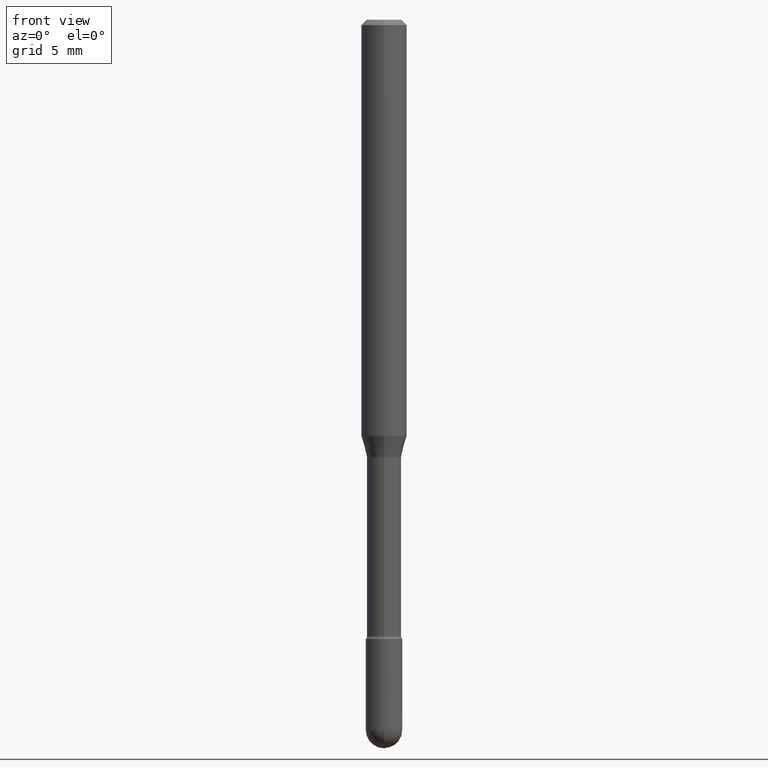
[diagram: clean part render]
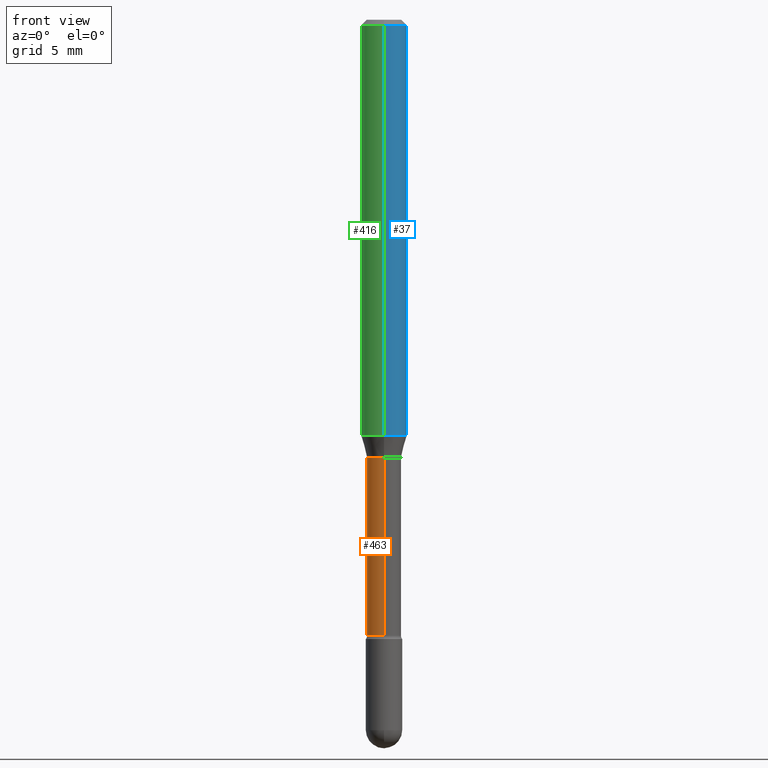
[diagram: same view with three faces highlighted in distinct colors, each labeled with its STEP entity id]
A machine part, front view with three faces highlighted in distinct colors.
Their STEP definitions:

[orange] entity #463 — the highlighted cylindrical surface (edge-blend (fillet) strip) has radius 1.1938 mm, axis along (-0, 0, 1).
#3 = DIRECTION ( 'NONE',  ( -2.445378392071588483E-29, 3.491610816999798488E-15, 1.000000000000000000 ) ) ;
#24 = VERTEX_POINT ( 'NONE', #266 ) ;
#32 = CIRCLE ( 'NONE', #216, 0.04700000000000000705 ) ;
#58 = CYLINDRICAL_SURFACE ( 'NONE', #73, 0.04700000000000004868 ) ;
#64 = DIRECTION ( 'NONE',  ( -6.982962677686265922E-15, -1.000000000000000000, 3.491610816999796910E-15 ) ) ;
#73 = AXIS2_PLACEMENT_3D ( 'NONE', #492, #228, #64 ) ;
#83 = DIRECTION ( 'NONE',  ( -6.982962677686265133E-15, -1.000000000000000000, 5.812442539711187545E-15 ) ) ;
#110 = EDGE_CURVE ( 'NONE', #335, #457, #32, .T. ) ;
#132 = CARTESIAN_POINT ( 'NONE',  ( 3.339550858072473347E-16, 0.04700000000000004868, 3.139676904922554404E-16 ) ) ;
#150 = CARTESIAN_POINT ( 'NONE',  ( 3.446132268436902621E-16, 0.04699999999999417838, -1.691000000000000281 ) ) ;
#152 = ORIENTED_EDGE ( 'NONE', *, *, #271, .F. ) ;
#171 = DIRECTION ( 'NONE',  ( -2.445378392071588483E-29, 3.491610816999798488E-15, 1.000000000000000000 ) ) ;
#174 = VECTOR ( 'NONE', #3, 39.37007874015748143 ) ;
#186 = DIRECTION ( 'NONE',  ( -2.445378392071588483E-29, 3.491610816999798093E-15, 1.000000000000000000 ) ) ;
#205 = CIRCLE ( 'NONE', #230, 0.04700000000000009032 ) ;
#211 = ORIENTED_EDGE ( 'NONE', *, *, #393, .T. ) ;
#216 = AXIS2_PLACEMENT_3D ( 'NONE', #479, #186, #435 ) ;
#228 = DIRECTION ( 'NONE',  ( -2.445378392071588483E-29, 3.491610816999798093E-15, 1.000000000000000000 ) ) ;
#230 = AXIS2_PLACEMENT_3D ( 'NONE', #288, #472, #83 ) ;
#259 = LINE ( 'NONE', #132, #473 ) ;
#266 = CARTESIAN_POINT ( 'NONE',  ( -3.281992458512137296E-16, -0.04700000000000599532, -1.690999999999999837 ) ) ;
#271 = EDGE_CURVE ( 'NONE', #467, #335, #259, .T. ) ;
#273 = EDGE_LOOP ( 'NONE', ( #152, #506, #211, #413 ) ) ;
#278 = CARTESIAN_POINT ( 'NONE',  ( 3.339550858072887499E-16, 0.04699999999999580208, -1.201974787463810701 ) ) ;
#288 = CARTESIAN_POINT ( 'NONE',  ( 4.135134860993056477E-29, -5.904313891546658026E-15, -1.691000000000000059 ) ) ;
#335 = VERTEX_POINT ( 'NONE', #278 ) ;
#393 = EDGE_CURVE ( 'NONE', #24, #457, #433, .T. ) ;
#413 = ORIENTED_EDGE ( 'NONE', *, *, #110, .F. ) ;
#433 = LINE ( 'NONE', #527, #174 ) ;
#435 = DIRECTION ( 'NONE',  ( -6.982962677686265922E-15, -1.000000000000000000, 2.906221269855598900E-15 ) ) ;
#449 = FACE_OUTER_BOUND ( 'NONE', #273, .T. ) ;
#457 = VERTEX_POINT ( 'NONE', #533 ) ;
#463 = ADVANCED_FACE ( 'NONE', ( #449 ), #58, .T. ) ;
#467 = VERTEX_POINT ( 'NONE', #150 ) ;
#472 = DIRECTION ( 'NONE',  ( -2.445378392071588483E-29, 3.491610816999798093E-15, 1.000000000000000000 ) ) ;
#473 = VECTOR ( 'NONE', #171, 39.37007874015748143 ) ;
#479 = CARTESIAN_POINT ( 'NONE',  ( 2.939283173078842436E-29, -4.196828169669674292E-15, -1.201974787463810479 ) ) ;
#492 = CARTESIAN_POINT ( 'NONE',  ( -1.169113584055446105E-44, 1.669184350826100908E-30, 4.780733988912460139E-16 ) ) ;
#499 = EDGE_CURVE ( 'NONE', #467, #24, #205, .T. ) ;
#506 = ORIENTED_EDGE ( 'NONE', *, *, #499, .T. ) ;
#527 = CARTESIAN_POINT ( 'NONE',  ( -3.281992458512548490E-16, -0.04700000000000004868, 6.421791072902367353E-16 ) ) ;
#533 = CARTESIAN_POINT ( 'NONE',  ( -3.281992458512251188E-16, -0.04700000000000420508, -1.201974787463810479 ) ) ;

[blue] entity #37 — the highlighted cylindrical surface (edge-blend (fillet) strip) has radius 1.5875 mm, axis along (-0, 0, 1).
#20 = ORIENTED_EDGE ( 'NONE', *, *, #261, .F. ) ;
#37 = ADVANCED_FACE ( 'NONE', ( #454 ), #66, .T. ) ;
#42 = AXIS2_PLACEMENT_3D ( 'NONE', #62, #357, #233 ) ;
#49 = LINE ( 'NONE', #560, #72 ) ;
#62 = CARTESIAN_POINT ( 'NONE',  ( -1.169113584055446105E-44, 1.669184350826100908E-30, 4.780733988912460139E-16 ) ) ;
#66 = CYLINDRICAL_SURFACE ( 'NONE', #42, 0.06250000000000000000 ) ;
#67 = CARTESIAN_POINT ( 'NONE',  ( 4.440892098500904235E-16, 0.06249999999999600320, -1.142153212482682534 ) ) ;
#72 = VECTOR ( 'NONE', #483, 39.37007874015748143 ) ;
#107 = CARTESIAN_POINT ( 'NONE',  ( -4.364351673553916201E-16, -0.06250000000000000000, 6.962990749537333701E-16 ) ) ;
#109 = CARTESIAN_POINT ( 'NONE',  ( 2.792996786240300833E-29, -3.987954511375601864E-15, -1.142153212482682312 ) ) ;
#142 = EDGE_CURVE ( 'NONE', #308, #356, #49, .T. ) ;
#162 = DIRECTION ( 'NONE',  ( -2.445378392071588483E-29, 3.491610816999798093E-15, 1.000000000000000000 ) ) ;
#169 = ORIENTED_EDGE ( 'NONE', *, *, #225, .F. ) ;
#172 = EDGE_CURVE ( 'NONE', #410, #308, #204, .T. ) ;
#204 = CIRCLE ( 'NONE', #296, 0.06250000000000000000 ) ;
#219 = EDGE_LOOP ( 'NONE', ( #240, #540, #169, #20 ) ) ;
#225 = EDGE_CURVE ( 'NONE', #366, #356, #418, .T. ) ;
#233 = DIRECTION ( 'NONE',  ( -6.982962677686265922E-15, -1.000000000000000000, 3.491610816999797699E-15 ) ) ;
#240 = ORIENTED_EDGE ( 'NONE', *, *, #172, .T. ) ;
#261 = EDGE_CURVE ( 'NONE', #410, #366, #490, .T. ) ;
#264 = DIRECTION ( 'NONE',  ( -2.445378392071588483E-29, 3.491610816999798093E-15, 1.000000000000000000 ) ) ;
#296 = AXIS2_PLACEMENT_3D ( 'NONE', #109, #264, #491 ) ;
#308 = VERTEX_POINT ( 'NONE', #67 ) ;
#319 = DIRECTION ( 'NONE',  ( -6.982962677686265922E-15, -1.000000000000000000, 3.483106191921935554E-15 ) ) ;
#350 = DIRECTION ( 'NONE',  ( -2.445378392071588483E-29, 3.491610816999798488E-15, 1.000000000000000000 ) ) ;
#356 = VERTEX_POINT ( 'NONE', #478 ) ;
#357 = DIRECTION ( 'NONE',  ( -2.445378392071588483E-29, 3.491610816999798093E-15, 1.000000000000000000 ) ) ;
#366 = VERTEX_POINT ( 'NONE', #520 ) ;
#370 = CARTESIAN_POINT ( 'NONE',  ( 3.668067588107402641E-31, -5.237416225499726599E-17, -0.01500000000000008271 ) ) ;
#410 = VERTEX_POINT ( 'NONE', #484 ) ;
#418 = CIRCLE ( 'NONE', #447, 0.06250000000000000000 ) ;
#447 = AXIS2_PLACEMENT_3D ( 'NONE', #370, #162, #319 ) ;
#454 = FACE_OUTER_BOUND ( 'NONE', #219, .T. ) ;
#478 = CARTESIAN_POINT ( 'NONE',  ( 4.440892098500906207E-16, 0.06249999999999993755, -0.01500000000000030129 ) ) ;
#483 = DIRECTION ( 'NONE',  ( -2.445378392071588483E-29, 3.491610816999798488E-15, 1.000000000000000000 ) ) ;
#484 = CARTESIAN_POINT ( 'NONE',  ( -4.364351673553637635E-16, -0.06250000000000399680, -1.142153212482682090 ) ) ;
#490 = LINE ( 'NONE', #107, #496 ) ;
#491 = DIRECTION ( 'NONE',  ( -6.982962677686265922E-15, -1.000000000000000000, 4.370956789862821150E-15 ) ) ;
#496 = VECTOR ( 'NONE', #350, 39.37007874015748143 ) ;
#520 = CARTESIAN_POINT ( 'NONE',  ( -4.364351673553912750E-16, -0.06250000000000005551, -0.01499999999999986587 ) ) ;
#540 = ORIENTED_EDGE ( 'NONE', *, *, #142, .T. ) ;
#560 = CARTESIAN_POINT ( 'NONE',  ( 4.440892098500625669E-16, 0.06250000000000000000, 2.598477228287587070E-16 ) ) ;

[green] entity #416 — the highlighted cylindrical surface (edge-blend (fillet) strip) has radius 1.5875 mm, axis along (-0, 0, 1).
#7 = CARTESIAN_POINT ( 'NONE',  ( 3.668067588107402641E-31, -5.237416225499726599E-17, -0.01500000000000008271 ) ) ;
#30 = ORIENTED_EDGE ( 'NONE', *, *, #441, .T. ) ;
#40 = DIRECTION ( 'NONE',  ( -6.982962677686265922E-15, -1.000000000000000000, 3.491610816999797699E-15 ) ) ;
#49 = LINE ( 'NONE', #560, #72 ) ;
#67 = CARTESIAN_POINT ( 'NONE',  ( 4.440892098500904235E-16, 0.06249999999999600320, -1.142153212482682534 ) ) ;
#72 = VECTOR ( 'NONE', #483, 39.37007874015748143 ) ;
#93 = CARTESIAN_POINT ( 'NONE',  ( 2.792996786240300833E-29, -3.987954511375601864E-15, -1.142153212482682312 ) ) ;
#107 = CARTESIAN_POINT ( 'NONE',  ( -4.364351673553916201E-16, -0.06250000000000000000, 6.962990749537333701E-16 ) ) ;
#142 = EDGE_CURVE ( 'NONE', #308, #356, #49, .T. ) ;
#160 = DIRECTION ( 'NONE',  ( -2.445378392071588483E-29, 3.491610816999798093E-15, 1.000000000000000000 ) ) ;
#167 = CYLINDRICAL_SURFACE ( 'NONE', #429, 0.06250000000000000000 ) ;
#212 = DIRECTION ( 'NONE',  ( -2.445378392071588483E-29, 3.491610816999798093E-15, 1.000000000000000000 ) ) ;
#251 = ORIENTED_EDGE ( 'NONE', *, *, #535, .F. ) ;
#255 = CIRCLE ( 'NONE', #474, 0.06250000000000000000 ) ;
#261 = EDGE_CURVE ( 'NONE', #410, #366, #490, .T. ) ;
#281 = CIRCLE ( 'NONE', #375, 0.06250000000000000000 ) ;
#308 = VERTEX_POINT ( 'NONE', #67 ) ;
#329 = ORIENTED_EDGE ( 'NONE', *, *, #261, .T. ) ;
#338 = DIRECTION ( 'NONE',  ( -2.445378392071588483E-29, 3.491610816999798093E-15, 1.000000000000000000 ) ) ;
#350 = DIRECTION ( 'NONE',  ( -2.445378392071588483E-29, 3.491610816999798488E-15, 1.000000000000000000 ) ) ;
#356 = VERTEX_POINT ( 'NONE', #478 ) ;
#366 = VERTEX_POINT ( 'NONE', #520 ) ;
#375 = AXIS2_PLACEMENT_3D ( 'NONE', #93, #338, #469 ) ;
#410 = VERTEX_POINT ( 'NONE', #484 ) ;
#416 = ADVANCED_FACE ( 'NONE', ( #565 ), #167, .T. ) ;
#429 = AXIS2_PLACEMENT_3D ( 'NONE', #549, #212, #40 ) ;
#441 = EDGE_CURVE ( 'NONE', #308, #410, #281, .T. ) ;
#469 = DIRECTION ( 'NONE',  ( -6.982962677686265922E-15, -1.000000000000000000, 4.370956789862821150E-15 ) ) ;
#474 = AXIS2_PLACEMENT_3D ( 'NONE', #7, #160, #551 ) ;
#478 = CARTESIAN_POINT ( 'NONE',  ( 4.440892098500906207E-16, 0.06249999999999993755, -0.01500000000000030129 ) ) ;
#483 = DIRECTION ( 'NONE',  ( -2.445378392071588483E-29, 3.491610816999798488E-15, 1.000000000000000000 ) ) ;
#484 = CARTESIAN_POINT ( 'NONE',  ( -4.364351673553637635E-16, -0.06250000000000399680, -1.142153212482682090 ) ) ;
#490 = LINE ( 'NONE', #107, #496 ) ;
#496 = VECTOR ( 'NONE', #350, 39.37007874015748143 ) ;
#509 = EDGE_LOOP ( 'NONE', ( #538, #30, #329, #251 ) ) ;
#520 = CARTESIAN_POINT ( 'NONE',  ( -4.364351673553912750E-16, -0.06250000000000005551, -0.01499999999999986587 ) ) ;
#535 = EDGE_CURVE ( 'NONE', #356, #366, #255, .T. ) ;
#538 = ORIENTED_EDGE ( 'NONE', *, *, #142, .F. ) ;
#549 = CARTESIAN_POINT ( 'NONE',  ( -1.169113584055446105E-44, 1.669184350826100908E-30, 4.780733988912460139E-16 ) ) ;
#551 = DIRECTION ( 'NONE',  ( -6.982962677686265922E-15, -1.000000000000000000, 3.483106191921935554E-15 ) ) ;
#560 = CARTESIAN_POINT ( 'NONE',  ( 4.440892098500625669E-16, 0.06250000000000000000, 2.598477228287587070E-16 ) ) ;
#565 = FACE_OUTER_BOUND ( 'NONE', #509, .T. ) ;